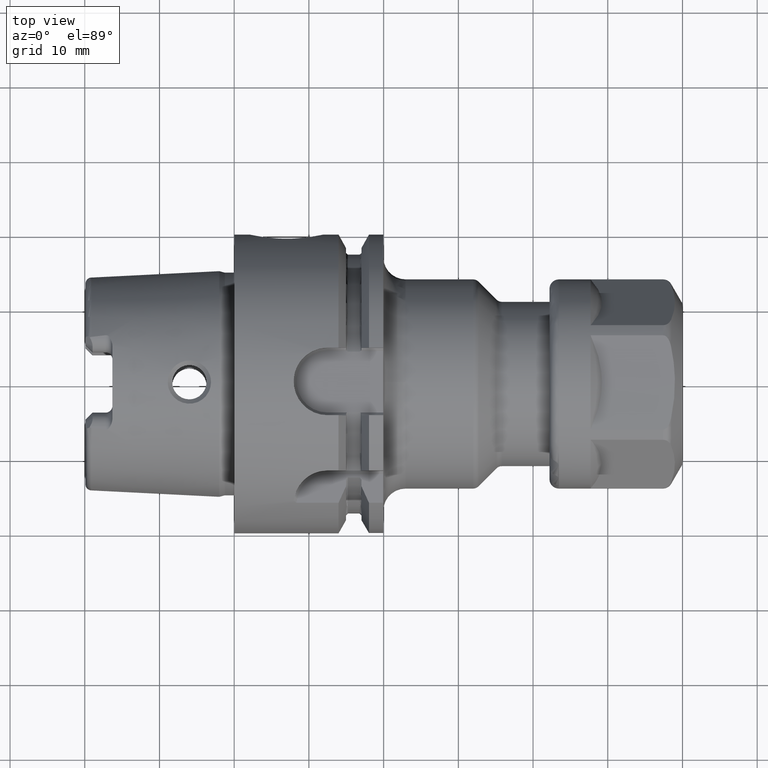
[diagram: clean part render]
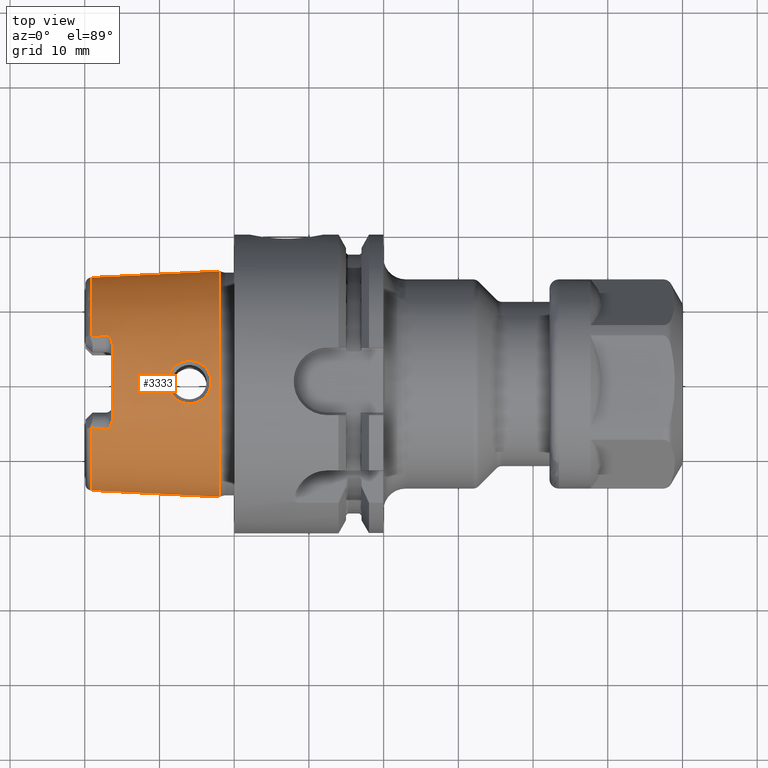
[diagram: same view with one face highlighted and labeled with its STEP entity id]
A machine part, top view. The second image highlights one B-rep face of the part: STEP entity #3333.
In plain terms, the highlighted conical surface has half-angle 2.868 deg.
Its self-contained STEP definition (entity closure, byte-faithful):
#2=CARTESIAN_POINT('',(-1.914002979389E1,-6.084832258490E0,1.288E1));
#3=CARTESIAN_POINT('',(-1.892688612639E1,-6.109831309973E0,1.288E1));
#4=CARTESIAN_POINT('',(-1.849898831226E1,-6.159766414951E0,1.288E1));
#5=CARTESIAN_POINT('',(-1.785231573549E1,-6.234489999013E0,1.288E1));
#6=CARTESIAN_POINT('',(-1.741797550532E1,-6.284193967233E0,1.288E1));
#7=CARTESIAN_POINT('',(-1.72E1,-6.309019508006E0,1.288E1));
#9=CARTESIAN_POINT('',(-1.63E1,0.E0,0.E0));
#10=DIRECTION('',(1.E0,0.E0,0.E0));
#11=DIRECTION('',(0.E0,3.346911685879E-1,9.423278737622E-1));
#12=AXIS2_PLACEMENT_3D('',#9,#10,#11);
#14=CARTESIAN_POINT('',(-1.72E1,6.309019508006E0,1.288E1));
#15=CARTESIAN_POINT('',(-1.741797080191E1,6.284194502910E0,1.288E1));
#16=CARTESIAN_POINT('',(-1.785230476238E1,6.234491259010E0,1.288E1));
#17=CARTESIAN_POINT('',(-1.849897737100E1,6.159767687203E0,1.288E1));
#18=CARTESIAN_POINT('',(-1.892688143798E1,6.109831859864E0,1.288E1));
#19=CARTESIAN_POINT('',(-1.914002979389E1,6.084832258490E0,1.288E1));
#21=CARTESIAN_POINT('',(-2.E0,0.E0,0.E0));
#22=DIRECTION('',(1.E0,0.E0,0.E0));
#23=DIRECTION('',(0.E0,1.E0,0.E0));
#24=AXIS2_PLACEMENT_3D('',#21,#22,#23);
#26=CARTESIAN_POINT('',(-8.899281903712E0,-2.978273309261E-9,1.475801243959E1));
#27=CARTESIAN_POINT('',(-8.899378093856E0,1.783579027004E-1,1.475800762046E1));
#28=CARTESIAN_POINT('',(-8.866919720948E0,5.292463773656E-1,1.475331491997E1));
#29=CARTESIAN_POINT('',(-8.720109423334E0,1.049101026064E0,1.473259073978E1));
#30=CARTESIAN_POINT('',(-8.480576862406E0,1.529002968479E0,1.470207244022E1));
#31=CARTESIAN_POINT('',(-8.156899895568E0,1.956596441709E0,1.466708358199E1));
#32=CARTESIAN_POINT('',(-7.759476069037E0,2.317306317374E0,1.463397951378E1));
#33=CARTESIAN_POINT('',(-7.301462136891E0,2.599371640891E0,1.460927583274E1));
#34=CARTESIAN_POINT('',(-6.799018550998E0,2.793063985136E0,1.459870023335E1));
#35=CARTESIAN_POINT('',(-6.268817878366E0,2.892303698257E0,1.460622607376E1));
#36=CARTESIAN_POINT('',(-5.728391260114E0,2.893524769807E0,1.463359435735E1));
#37=CARTESIAN_POINT('',(-5.196053524932E0,2.795851138609E0,1.467995679243E1));
#38=CARTESIAN_POINT('',(-4.690769712254E0,2.601758359427E0,1.474173648596E1));
#39=CARTESIAN_POINT('',(-4.230803325252E0,2.317296795690E0,1.481300241411E1));
#40=CARTESIAN_POINT('',(-3.833766920733E0,1.953629118970E0,1.488599273046E1));
#41=CARTESIAN_POINT('',(-3.512666547124E0,1.524259252682E0,1.495276987726E1));
#42=CARTESIAN_POINT('',(-3.276424392532E0,1.044209756054E0,1.500629039151E1));
#43=CARTESIAN_POINT('',(-3.132336341798E0,5.261442727594E-1,1.504082403563E1));
#44=CARTESIAN_POINT('',(-3.100678763089E0,1.770419902994E-1,1.504852547277E1));
#45=CARTESIAN_POINT('',(-3.100721108142E0,2.227197984377E-9,1.504852335128E1));
#47=CARTESIAN_POINT('',(-3.100721108142E0,2.227197984377E-9,1.504852335128E1));
#48=CARTESIAN_POINT('',(-3.100639567665E0,-1.767049910564E-1,1.504852743646E1));
#49=CARTESIAN_POINT('',(-3.132220565756E0,-5.252669339217E-1,1.504085250139E1));
#50=CARTESIAN_POINT('',(-3.275924590777E0,-1.042834335445E0,1.500640894600E1));
#51=CARTESIAN_POINT('',(-3.511872254434E0,-1.522974815545E0,1.495294310433E1));
#52=CARTESIAN_POINT('',(-3.832809097262E0,-1.952582409472E0,1.488618082118E1));
#53=CARTESIAN_POINT('',(-4.229778870801E0,-2.316544706648E0,1.481317429798E1));
#54=CARTESIAN_POINT('',(-4.689804538315E0,-2.601290536160E0,1.474186951074E1));
#55=CARTESIAN_POINT('',(-5.195095366519E0,-2.795584687678E0,1.468005699808E1));
#56=CARTESIAN_POINT('',(-5.727350080637E0,-2.893427324756E0,1.463366702724E1));
#57=CARTESIAN_POINT('',(-6.267779300438E0,-2.892405067806E0,1.460625884721E1));
#58=CARTESIAN_POINT('',(-6.798099592180E0,-2.793326591411E0,1.459869634767E1));
#59=CARTESIAN_POINT('',(-7.300624004497E0,-2.599785018985E0,1.460924405438E1));
#60=CARTESIAN_POINT('',(-7.758682096347E0,-2.317891958911E0,1.463392566182E1));
#61=CARTESIAN_POINT('',(-8.156192454349E0,-1.957364279937E0,1.466701537088E1));
#62=CARTESIAN_POINT('',(-8.479992643450E0,-1.529930394278E0,1.470200361483E1));
#63=CARTESIAN_POINT('',(-8.719742998211E0,-1.050099369913E0,1.473253960224E1));
#64=CARTESIAN_POINT('',(-8.866835817822E0,-5.298766564454E-1,1.475330246821E1));
#65=CARTESIAN_POINT('',(-8.899334031337E0,-1.786001076903E-1,1.475800982799E1));
#66=CARTESIAN_POINT('',(-8.899281903712E0,-2.978273309261E-9,1.475801243959E1));
#252=CARTESIAN_POINT('',(-1.660727930359E1,5.905E0,1.310273921120E1));
#253=CARTESIAN_POINT('',(-1.653625033657E1,5.775726808391E0,1.316490188102E1));
#254=CARTESIAN_POINT('',(-1.642078631788E1,5.521240341848E0,1.328123827236E1));
#255=CARTESIAN_POINT('',(-1.632069180697E1,5.153851277419E0,1.343317604260E1));
#256=CARTESIAN_POINT('',(-1.63E1,4.925557425411E0,1.351836211581E1));
#257=CARTESIAN_POINT('',(-1.63E1,4.815292209090E0,1.355752554834E1));
#314=CARTESIAN_POINT('',(-1.914002979389E1,0.E0,0.E0));
#315=DIRECTION('',(1.E0,0.E0,0.E0));
#316=DIRECTION('',(0.E0,1.E0,0.E0));
#317=AXIS2_PLACEMENT_3D('',#314,#315,#316);
#385=CARTESIAN_POINT('',(-1.914002979389E1,0.E0,0.E0));
#386=DIRECTION('',(1.E0,0.E0,0.E0));
#387=DIRECTION('',(0.E0,-4.271561162710E-1,9.041778875488E-1));
#388=AXIS2_PLACEMENT_3D('',#385,#386,#387);
#542=DIRECTION('',(-9.987473526255E-1,5.003724236654E-2,0.E0));
#543=VECTOR('',#542,1.716152713580E1);
#544=CARTESIAN_POINT('',(-2.E0,-1.51037E1,0.E0));
#545=LINE('',#544,#543);
#551=DIRECTION('',(-9.987473526255E-1,-5.003724236654E-2,0.E0));
#552=VECTOR('',#551,1.716152713580E1);
#553=CARTESIAN_POINT('',(-2.E0,1.51037E1,0.E0));
#554=LINE('',#553,#552);
#2664=CARTESIAN_POINT('',(-1.63E1,-4.815292209090E0,1.355752554834E1));
#2665=CARTESIAN_POINT('',(-1.63E1,-4.925553094196E0,1.351836365415E1));
#2666=CARTESIAN_POINT('',(-1.632068897982E1,-5.153841612236E0,
1.343318008240E1));
#2667=CARTESIAN_POINT('',(-1.642079205286E1,-5.521258100339E0,
1.328123071637E1));
#2668=CARTESIAN_POINT('',(-1.653625416421E1,-5.775733774712E0,
1.316489853117E1));
#2669=CARTESIAN_POINT('',(-1.660727930359E1,-5.905E0,1.310273921120E1));
#2741=CARTESIAN_POINT('',(-1.660727930359E1,-5.905E0,1.310273921120E1));
#2742=CARTESIAN_POINT('',(-1.663810335718E1,-5.961099982227E0,
1.307576281627E1));
#2743=CARTESIAN_POINT('',(-1.670402213949E1,-6.062642982683E0,
1.302549728709E1));
#2744=CARTESIAN_POINT('',(-1.681557351780E1,-6.182436628979E0,
1.296275135480E1));
#2745=CARTESIAN_POINT('',(-1.693993977895E1,-6.267385816438E0,
1.291486369986E1));
#2746=CARTESIAN_POINT('',(-1.707169198869E1,-6.311558227703E0,
1.288592112146E1));
#2747=CARTESIAN_POINT('',(-1.715754308598E1,-6.313854986417E0,1.288E1));
#2748=CARTESIAN_POINT('',(-1.72E1,-6.309019508006E0,1.288E1));
#2758=CARTESIAN_POINT('',(-1.72E1,6.309019508006E0,1.288E1));
#2759=CARTESIAN_POINT('',(-1.715734172222E1,6.313877920023E0,1.288E1));
#2760=CARTESIAN_POINT('',(-1.707122779775E1,6.311656015410E0,1.288590069661E1));
#2761=CARTESIAN_POINT('',(-1.693789435622E1,6.266284710119E0,1.291551108098E1));
#2762=CARTESIAN_POINT('',(-1.681571921803E1,6.182437139374E0,1.296274225170E1));
#2763=CARTESIAN_POINT('',(-1.670340637268E1,6.061935989712E0,1.302586203627E1));
#2764=CARTESIAN_POINT('',(-1.663794401339E1,5.960809975467E0,1.307590226973E1));
#2765=CARTESIAN_POINT('',(-1.660727930359E1,5.905E0,1.310273921120E1));
#2783=CARTESIAN_POINT('',(-2.E0,1.51037E1,0.E0));
#2784=CARTESIAN_POINT('',(-2.E0,-1.51037E1,0.E0));
#2785=VERTEX_POINT('',#2783);
#2786=VERTEX_POINT('',#2784);
#2787=CARTESIAN_POINT('',(-1.914002979389E1,1.424498450733E1,0.E0));
#2788=VERTEX_POINT('',#2787);
#2789=CARTESIAN_POINT('',(-1.914002979389E1,-1.424498450733E1,0.E0));
#2790=VERTEX_POINT('',#2789);
#2803=CARTESIAN_POINT('',(-1.914002979389E1,6.084832258490E0,1.288E1));
#2804=VERTEX_POINT('',#2803);
#2805=CARTESIAN_POINT('',(-1.914002979389E1,-6.084832258490E0,1.288E1));
#2806=VERTEX_POINT('',#2805);
#2819=CARTESIAN_POINT('',(-1.63E1,4.815292209089E0,1.355752554834E1));
#2820=VERTEX_POINT('',#2819);
#2823=CARTESIAN_POINT('',(-1.72E1,6.309019508006E0,1.288E1));
#2824=VERTEX_POINT('',#2823);
#2825=CARTESIAN_POINT('',(-1.63E1,-4.815292209089E0,1.355752554834E1));
#2826=VERTEX_POINT('',#2825);
#2829=CARTESIAN_POINT('',(-1.72E1,-6.309019508006E0,1.288E1));
#2830=VERTEX_POINT('',#2829);
#2831=VERTEX_POINT('',#2765);
#2832=VERTEX_POINT('',#2741);
#3125=VERTEX_POINT('',#26);
#3126=VERTEX_POINT('',#45);
#3296=CARTESIAN_POINT('',(-1.057001489695E1,0.E0,0.E0));
#3297=DIRECTION('',(1.E0,0.E0,0.E0));
#3298=DIRECTION('',(0.E0,-1.E0,0.E0));
#3299=AXIS2_PLACEMENT_3D('',#3296,#3297,#3298);
#3300=CONICAL_SURFACE('',#3299,1.467434225366E1,2.868120487315E0);
#3302=ORIENTED_EDGE('',*,*,#3301,.T.);
#3304=ORIENTED_EDGE('',*,*,#3303,.F.);
#3306=ORIENTED_EDGE('',*,*,#3305,.F.);
#3308=ORIENTED_EDGE('',*,*,#3307,.F.);
#3310=ORIENTED_EDGE('',*,*,#3309,.F.);
#3312=ORIENTED_EDGE('',*,*,#3311,.F.);
#3314=ORIENTED_EDGE('',*,*,#3313,.T.);
#3316=ORIENTED_EDGE('',*,*,#3315,.F.);
#3318=ORIENTED_EDGE('',*,*,#3317,.F.);
#3320=ORIENTED_EDGE('',*,*,#3319,.T.);
#3322=ORIENTED_EDGE('',*,*,#3321,.T.);
#3324=ORIENTED_EDGE('',*,*,#3323,.F.);
#3325=EDGE_LOOP('',(#3302,#3304,#3306,#3308,#3310,#3312,#3314,#3316,#3318,#3320,
#3322,#3324));
#3326=FACE_OUTER_BOUND('',#3325,.F.);
#3328=ORIENTED_EDGE('',*,*,#3327,.F.);
#3330=ORIENTED_EDGE('',*,*,#3329,.F.);
#3331=EDGE_LOOP('',(#3328,#3330));
#3332=FACE_BOUND('',#3331,.F.);
#3333=ADVANCED_FACE('',(#3326,#3332),#3300,.T.);
#8=B_SPLINE_CURVE_WITH_KNOTS('',3,(#2,#3,#4,#5,#6,#7),.UNSPECIFIED.,.F.,.F.,(4,
1,1,4),(0.E0,3.333333333333E-1,6.666666666667E-1,1.E0),.UNSPECIFIED.);
#13=CIRCLE('',#12,1.438727E1);
#20=B_SPLINE_CURVE_WITH_KNOTS('',3,(#14,#15,#16,#17,#18,#19),.UNSPECIFIED.,.F.,
.F.,(4,1,1,4),(0.E0,3.333333333333E-1,6.666666666667E-1,1.E0),.UNSPECIFIED.);
#25=CIRCLE('',#24,1.51037E1);
#46=B_SPLINE_CURVE_WITH_KNOTS('',3,(#26,#27,#28,#29,#30,#31,#32,#33,#34,#35,#36,
#37,#38,#39,#40,#41,#42,#43,#44,#45),.UNSPECIFIED.,.F.,.F.,(4,1,1,1,1,1,1,1,1,1,
1,1,1,1,1,1,1,4),(0.E0,5.882352941176E-2,1.176470588235E-1,1.764705882353E-1,
2.352941176471E-1,2.941176470588E-1,3.529411764706E-1,4.117647058824E-1,
4.705882352941E-1,5.294117647059E-1,5.882352941176E-1,6.470588235294E-1,
7.058823529412E-1,7.647058823529E-1,8.235294117647E-1,8.823529411765E-1,
9.411764705882E-1,1.E0),.UNSPECIFIED.);
#67=B_SPLINE_CURVE_WITH_KNOTS('',3,(#47,#48,#49,#50,#51,#52,#53,#54,#55,#56,#57,
#58,#59,#60,#61,#62,#63,#64,#65,#66),.UNSPECIFIED.,.F.,.F.,(4,1,1,1,1,1,1,1,1,1,
1,1,1,1,1,1,1,4),(0.E0,5.882352941176E-2,1.176470588235E-1,1.764705882353E-1,
2.352941176471E-1,2.941176470588E-1,3.529411764706E-1,4.117647058824E-1,
4.705882352941E-1,5.294117647059E-1,5.882352941176E-1,6.470588235294E-1,
7.058823529412E-1,7.647058823529E-1,8.235294117647E-1,8.823529411765E-1,
9.411764705882E-1,1.E0),.UNSPECIFIED.);
#258=B_SPLINE_CURVE_WITH_KNOTS('',3,(#252,#253,#254,#255,#256,#257),
.UNSPECIFIED.,.F.,.F.,(4,1,1,4),(0.E0,3.333333333333E-1,6.666666666667E-1,1.E0),
.UNSPECIFIED.);
#318=CIRCLE('',#317,1.424498450733E1);
#389=CIRCLE('',#388,1.424498450733E1);
#2670=B_SPLINE_CURVE_WITH_KNOTS('',3,(#2664,#2665,#2666,#2667,#2668,#2669),
.UNSPECIFIED.,.F.,.F.,(4,1,1,4),(0.E0,3.333333333333E-1,6.666666666667E-1,1.E0),
.UNSPECIFIED.);
#2749=B_SPLINE_CURVE_WITH_KNOTS('',3,(#2741,#2742,#2743,#2744,#2745,#2746,#2747,
#2748),.UNSPECIFIED.,.F.,.F.,(4,1,1,1,1,4),(0.E0,2.E-1,4.E-1,6.E-1,8.E-1,1.E0),
.UNSPECIFIED.);
#2766=B_SPLINE_CURVE_WITH_KNOTS('',3,(#2758,#2759,#2760,#2761,#2762,#2763,#2764,
#2765),.UNSPECIFIED.,.F.,.F.,(4,1,1,1,1,4),(0.E0,2.E-1,4.E-1,6.E-1,8.E-1,1.E0),
.UNSPECIFIED.);
#3301=EDGE_CURVE('',#2806,#2830,#8,.T.);
#3303=EDGE_CURVE('',#2832,#2830,#2749,.T.);
#3305=EDGE_CURVE('',#2826,#2832,#2670,.T.);
#3307=EDGE_CURVE('',#2820,#2826,#13,.T.);
#3309=EDGE_CURVE('',#2831,#2820,#258,.T.);
#3311=EDGE_CURVE('',#2824,#2831,#2766,.T.);
#3313=EDGE_CURVE('',#2824,#2804,#20,.T.);
#3315=EDGE_CURVE('',#2788,#2804,#318,.T.);
#3317=EDGE_CURVE('',#2785,#2788,#554,.T.);
#3319=EDGE_CURVE('',#2785,#2786,#25,.T.);
#3321=EDGE_CURVE('',#2786,#2790,#545,.T.);
#3323=EDGE_CURVE('',#2806,#2790,#389,.T.);
#3327=EDGE_CURVE('',#3125,#3126,#46,.T.);
#3329=EDGE_CURVE('',#3126,#3125,#67,.T.);